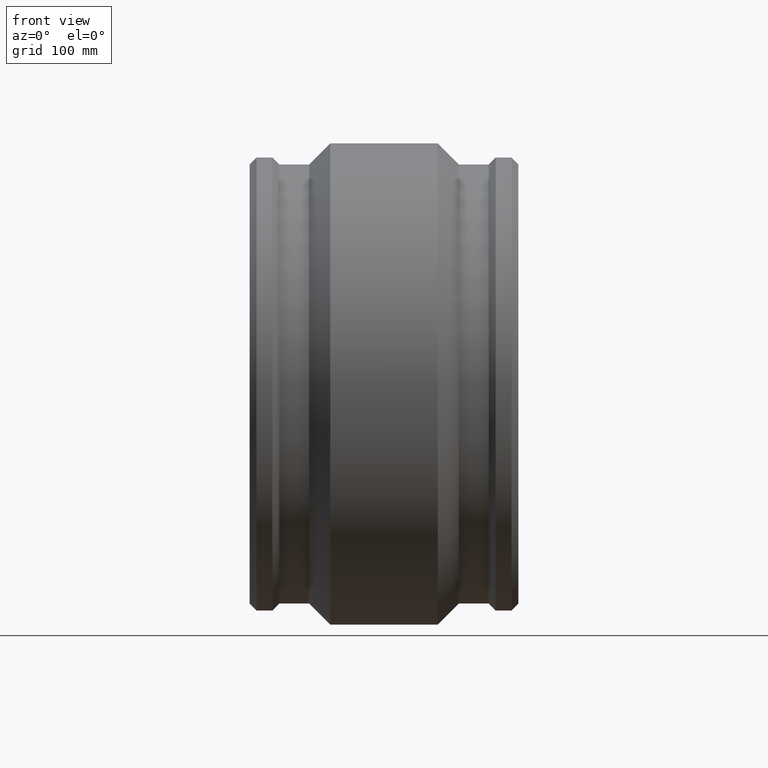
[diagram: clean part render]
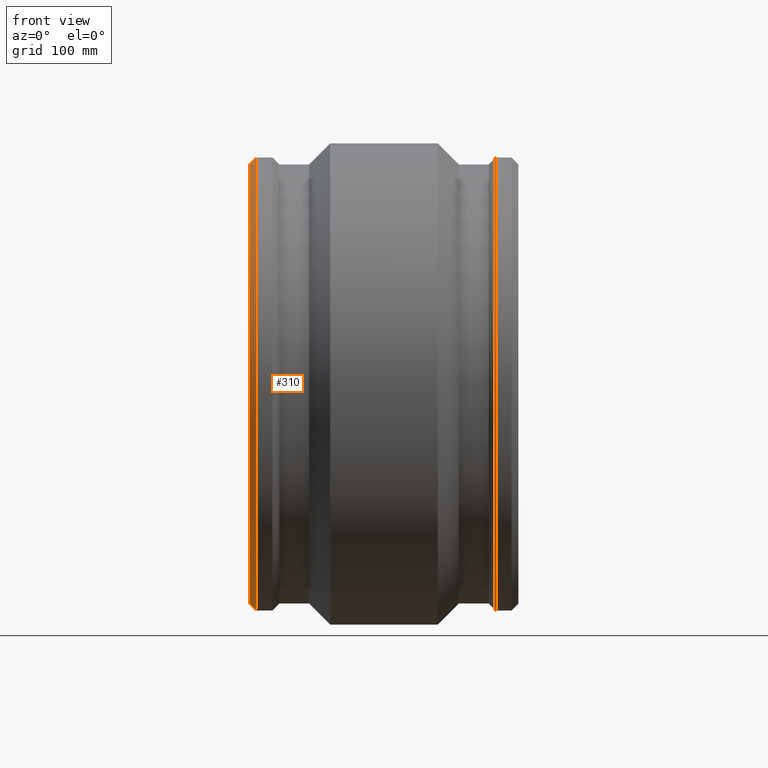
[diagram: same view with one face highlighted and labeled with its STEP entity id]
A machine part, front view. The second image highlights one B-rep face of the part: STEP entity #310.
In plain terms, the highlighted conical surface has half-angle 45 deg.
Its self-contained STEP definition (entity closure, byte-faithful):
#15=CONICAL_SURFACE('',#358,312.245,45.0000000000001);
#38=FACE_BOUND('',#122,.T.);
#80=FACE_OUTER_BOUND('',#121,.T.);
#121=EDGE_LOOP('',(#263));
#122=EDGE_LOOP('',(#264));
#157=CIRCLE('',#353,317.);
#159=CIRCLE('',#356,307.49);
#183=VERTEX_POINT('',#606);
#185=VERTEX_POINT('',#611);
#213=EDGE_CURVE('',#183,#183,#157,.T.);
#215=EDGE_CURVE('',#185,#185,#159,.T.);
#263=ORIENTED_EDGE('',*,*,#215,.T.);
#264=ORIENTED_EDGE('',*,*,#213,.F.);
#310=ADVANCED_FACE('',(#80,#38),#15,.T.);
#353=AXIS2_PLACEMENT_3D('',#607,#439,#440);
#356=AXIS2_PLACEMENT_3D('',#612,#445,#446);
#358=AXIS2_PLACEMENT_3D('',#615,#449,#450);
#439=DIRECTION('center_axis',(1.,1.83697019872103E-16,0.));
#440=DIRECTION('ref_axis',(0.,0.,-1.));
#445=DIRECTION('center_axis',(1.,1.83697019872103E-16,0.));
#446=DIRECTION('ref_axis',(0.,0.,-1.));
#449=DIRECTION('center_axis',(1.,1.83697019872103E-16,0.));
#450=DIRECTION('ref_axis',(-1.90323947078598E-16,1.,0.));
#606=CARTESIAN_POINT('',(-178.49,317.,0.));
#607=CARTESIAN_POINT('Origin',(-178.49,1.7469586589837E-15,0.));
#611=CARTESIAN_POINT('',(-188.,307.49,0.));
#612=CARTESIAN_POINT('Origin',(-188.,3.94430452610506E-30,0.));
#615=CARTESIAN_POINT('Origin',(-183.245,8.73479329491846E-16,0.));